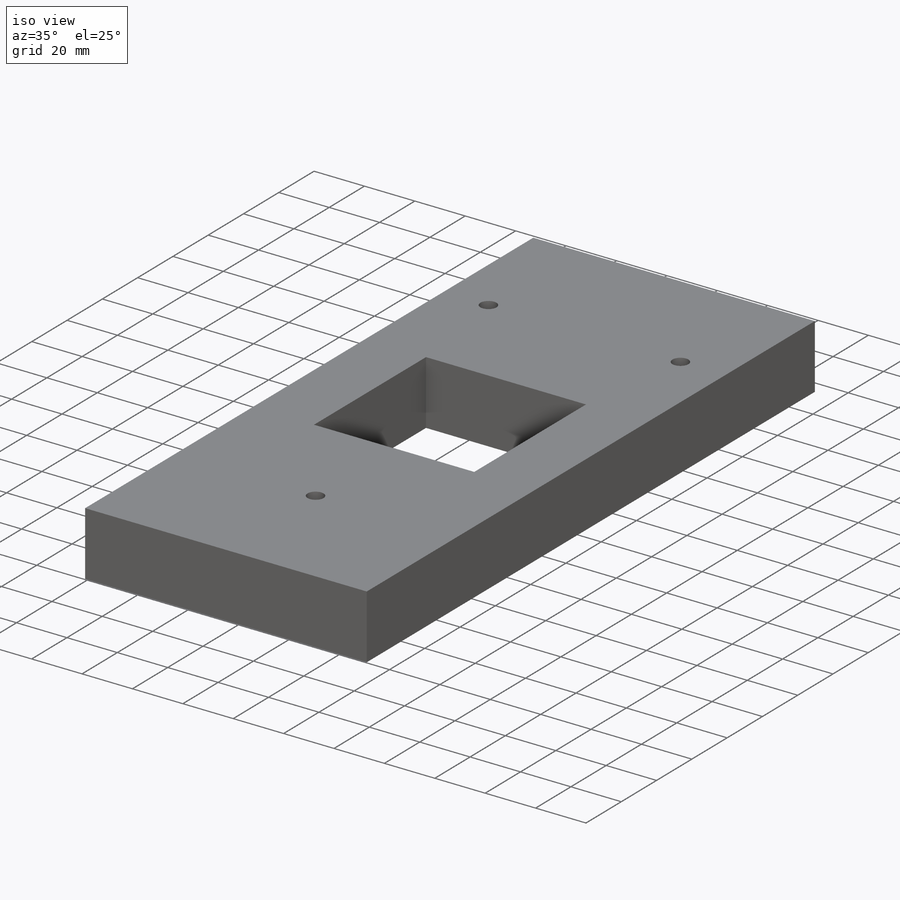
[diagram: iso view]
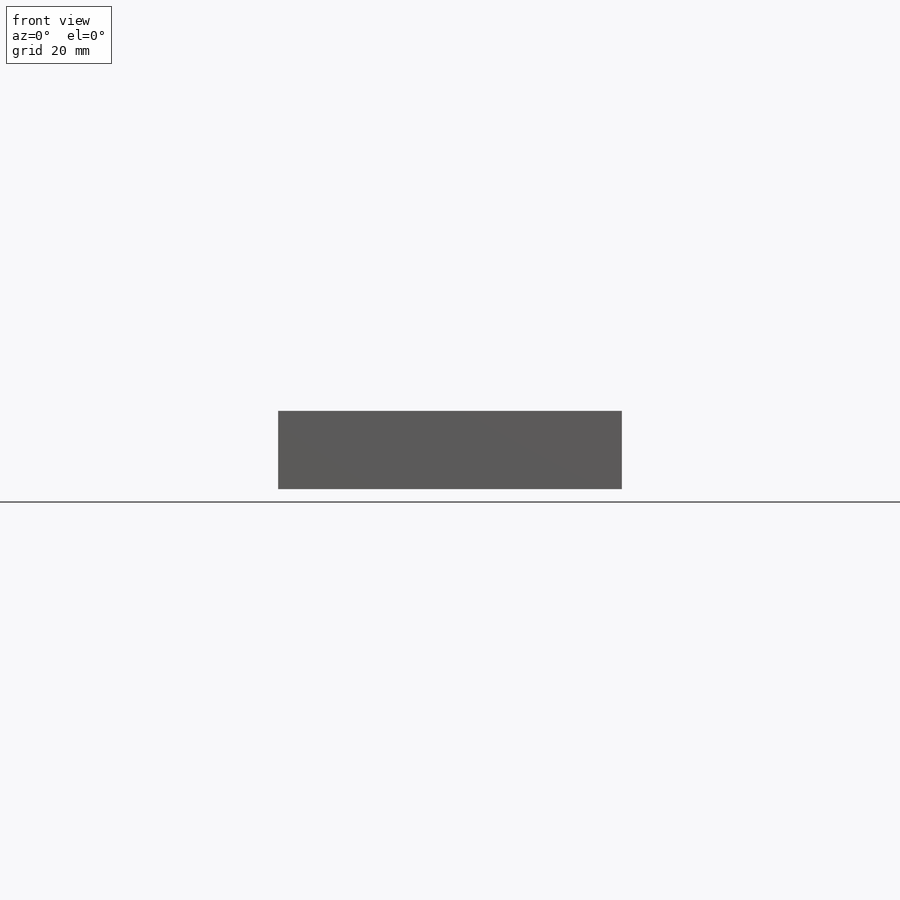
[diagram: front view]
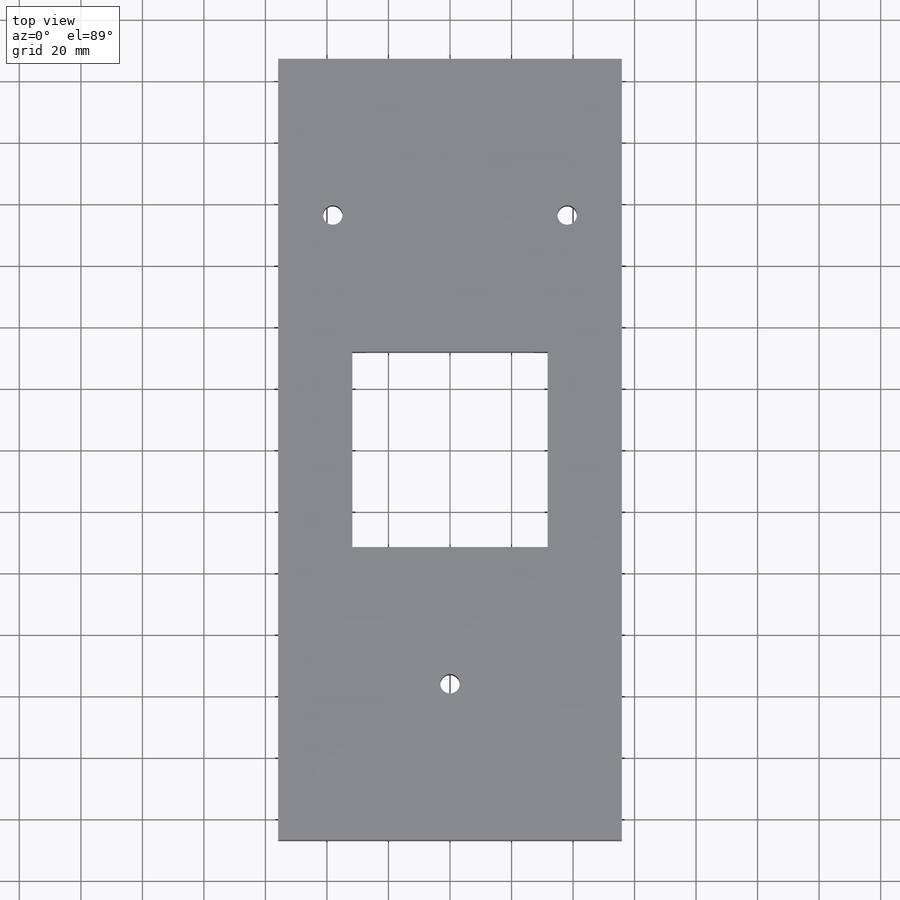
[diagram: top view]
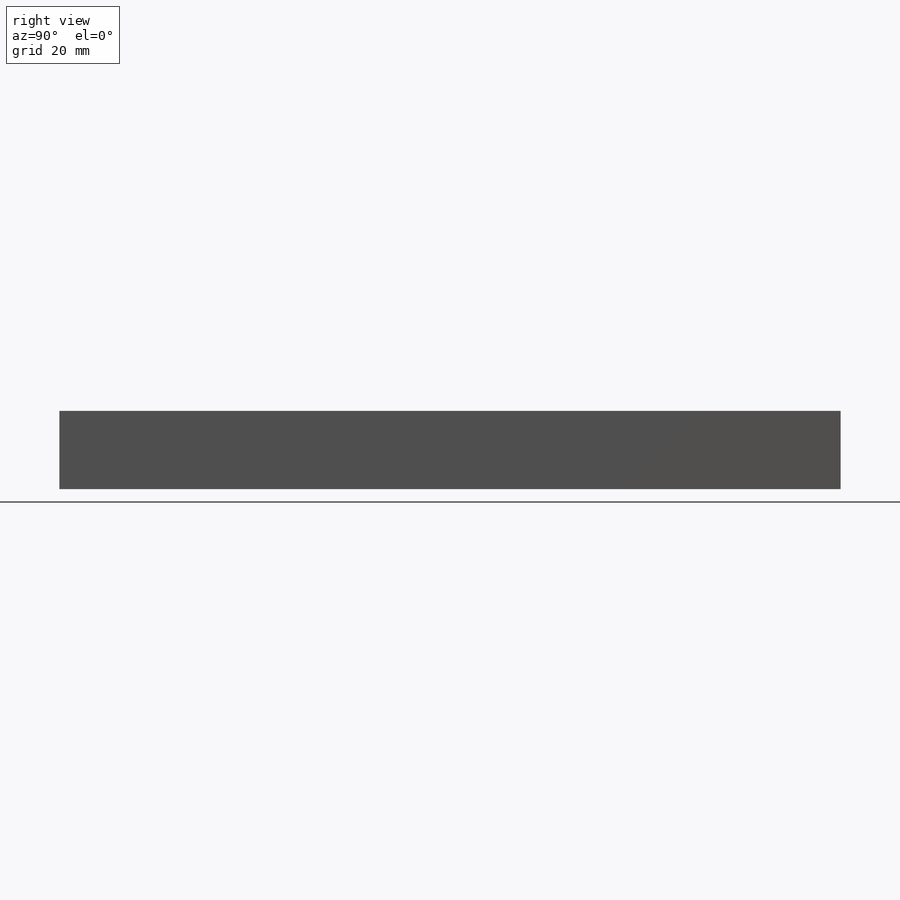
[diagram: right view]
SOLIDWORKS PART (.sldprt)
format: sldprt  version: not decoded by parser v0  size: 181,248 bytes
history: native  units: mm
features: sketch x3, cut_extrude x2, material x1, extrude x1 (+12 scaffold rows collapsed)
feature tree (19):
  scaffold x12  (default folders/planes/origin — collapsed)
  material  "6061 Alloy"
  sketch  "Sketch1"  dims[D1=55.88mm D2=55.88mm D3=127.0mm D4=127.0mm]
  extrude  "Boss-Extrude1"  Depth=25.4mm
  sketch  "Sketch2"  dims[D1=31.75mm D2=31.75mm D3=31.75mm D4=31.75mm]
  cut_extrude  "Cut-Extrude1"  Depth=25.4mm
  sketch  "Sketch3"  dims[D1=6.35mm D2=6.35mm D3=6.35mm D4=38.1mm D5=38.1mm D6=76.2mm D7=76.2mm]
  cut_extrude  "Cut-Extrude2"  [1 undecoded]
decode coverage: 5 of 6 modeling features carry decoded parameters
note: 1 parameter value undecoded
note: suppression state not decoded; provenance and decode notes live in map.json
